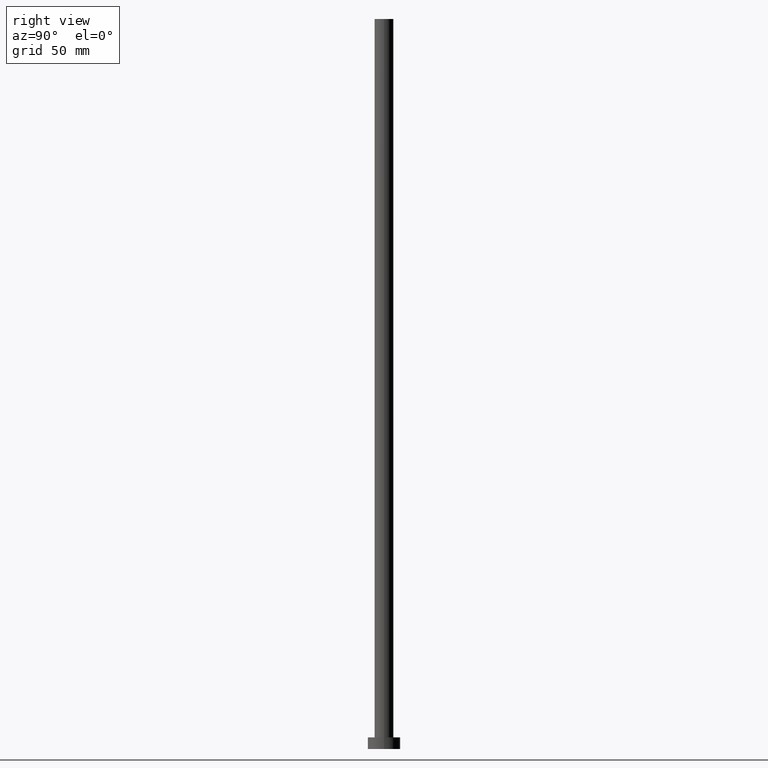
[diagram: clean part render]
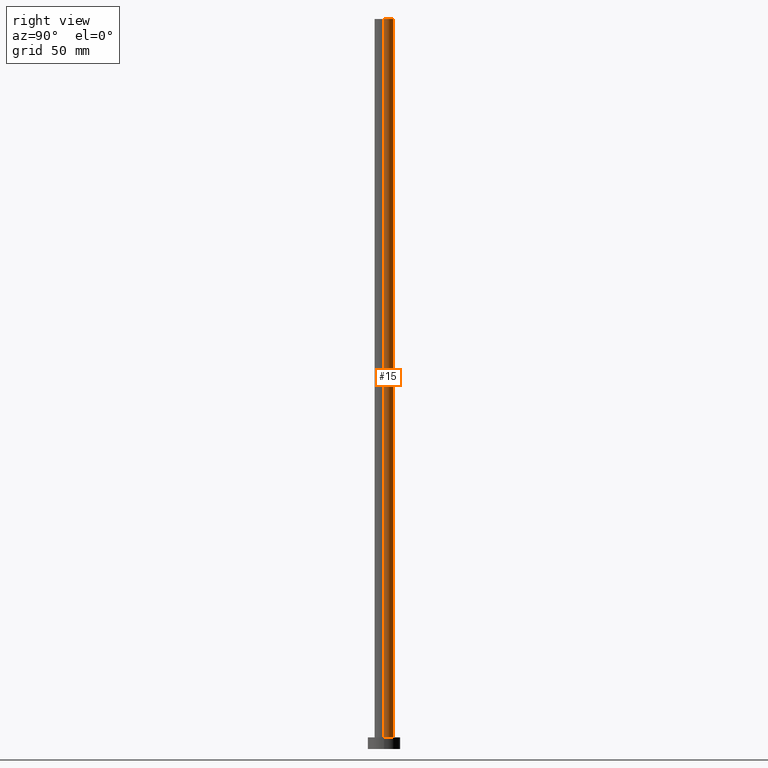
[diagram: same view with one face highlighted and labeled with its STEP entity id]
A machine part, right view. The second image highlights one B-rep face of the part: STEP entity #15.
In plain terms, the highlighted cylindrical surface (edge-blend (fillet) strip) has radius 4.1 mm, axis along (-0, -0, -1).
Its self-contained STEP definition (entity closure, byte-faithful):
#3 = EDGE_CURVE ( 'NONE', #99, #74, #75, .T. ) ;
#5 = DIRECTION ( 'NONE',  ( 0.000000000000000000, 0.000000000000000000, 1.000000000000000000 ) ) ;
#10 = VERTEX_POINT ( 'NONE', #194 ) ;
#15 = ADVANCED_FACE ( 'NONE', ( #212 ), #168, .T. ) ;
#16 = ORIENTED_EDGE ( 'NONE', *, *, #3, .T. ) ;
#18 = DIRECTION ( 'NONE',  ( -0.000000000000000000, -0.000000000000000000, -1.000000000000000000 ) ) ;
#21 = CARTESIAN_POINT ( 'NONE',  ( 4.099999999999999645, 5.021051876504147385E-16, 5.000000000000000000 ) ) ;
#27 = CARTESIAN_POINT ( 'NONE',  ( 0.000000000000000000, 0.000000000000000000, 5.000000000000000000 ) ) ;
#42 = LINE ( 'NONE', #172, #187 ) ;
#67 = VERTEX_POINT ( 'NONE', #135 ) ;
#68 = AXIS2_PLACEMENT_3D ( 'NONE', #224, #5, #154 ) ;
#74 = VERTEX_POINT ( 'NONE', #21 ) ;
#75 = LINE ( 'NONE', #148, #213 ) ;
#76 = CIRCLE ( 'NONE', #245, 4.099999999999999645 ) ;
#80 = DIRECTION ( 'NONE',  ( -0.000000000000000000, -0.000000000000000000, -1.000000000000000000 ) ) ;
#87 = ORIENTED_EDGE ( 'NONE', *, *, #106, .T. ) ;
#98 = CARTESIAN_POINT ( 'NONE',  ( 4.099999999999999645, 5.021051876504147385E-16, 315.0000000000000000 ) ) ;
#99 = VERTEX_POINT ( 'NONE', #98 ) ;
#106 = EDGE_CURVE ( 'NONE', #74, #10, #76, .T. ) ;
#127 = DIRECTION ( 'NONE',  ( -1.000000000000000000, 0.000000000000000000, 0.000000000000000000 ) ) ;
#130 = AXIS2_PLACEMENT_3D ( 'NONE', #165, #18, #127 ) ;
#134 = EDGE_CURVE ( 'NONE', #67, #10, #42, .T. ) ;
#135 = CARTESIAN_POINT ( 'NONE',  ( -4.099999999999999645, 0.000000000000000000, 315.0000000000000000 ) ) ;
#140 = DIRECTION ( 'NONE',  ( 0.000000000000000000, 0.000000000000000000, 1.000000000000000000 ) ) ;
#145 = DIRECTION ( 'NONE',  ( -0.000000000000000000, -0.000000000000000000, -1.000000000000000000 ) ) ;
#146 = EDGE_CURVE ( 'NONE', #99, #67, #147, .T. ) ;
#147 = CIRCLE ( 'NONE', #68, 4.099999999999999645 ) ;
#148 = CARTESIAN_POINT ( 'NONE',  ( 4.099999999999999645, 5.021051876504147385E-16, 315.0000000000000000 ) ) ;
#153 = DIRECTION ( 'NONE',  ( 1.000000000000000000, 0.000000000000000000, 0.000000000000000000 ) ) ;
#154 = DIRECTION ( 'NONE',  ( 1.000000000000000000, 0.000000000000000000, 0.000000000000000000 ) ) ;
#156 = EDGE_LOOP ( 'NONE', ( #177, #16, #87, #208 ) ) ;
#165 = CARTESIAN_POINT ( 'NONE',  ( 0.000000000000000000, 0.000000000000000000, 315.0000000000000000 ) ) ;
#168 = CYLINDRICAL_SURFACE ( 'NONE', #130, 4.099999999999999645 ) ;
#172 = CARTESIAN_POINT ( 'NONE',  ( -4.099999999999999645, 0.000000000000000000, 315.0000000000000000 ) ) ;
#177 = ORIENTED_EDGE ( 'NONE', *, *, #146, .F. ) ;
#187 = VECTOR ( 'NONE', #80, 1000.000000000000000 ) ;
#194 = CARTESIAN_POINT ( 'NONE',  ( -4.099999999999999645, 0.000000000000000000, 5.000000000000000000 ) ) ;
#208 = ORIENTED_EDGE ( 'NONE', *, *, #134, .F. ) ;
#212 = FACE_OUTER_BOUND ( 'NONE', #156, .T. ) ;
#213 = VECTOR ( 'NONE', #145, 1000.000000000000000 ) ;
#224 = CARTESIAN_POINT ( 'NONE',  ( 0.000000000000000000, 0.000000000000000000, 315.0000000000000000 ) ) ;
#245 = AXIS2_PLACEMENT_3D ( 'NONE', #27, #140, #153 ) ;